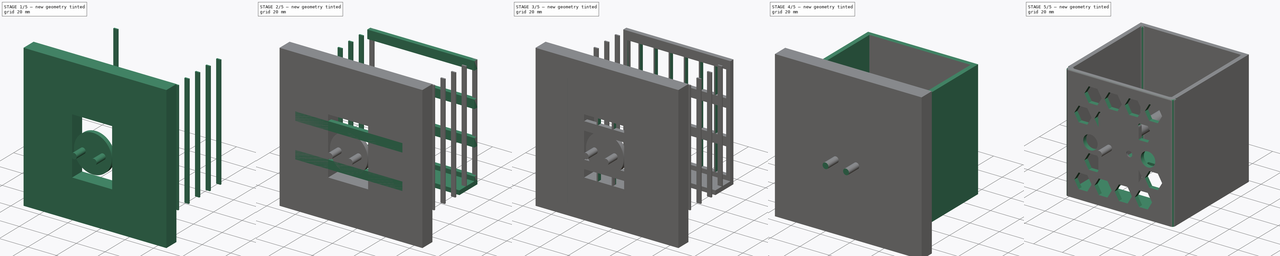
[diagram: build sequence overview — one tinted view per stage of 5, left to right]
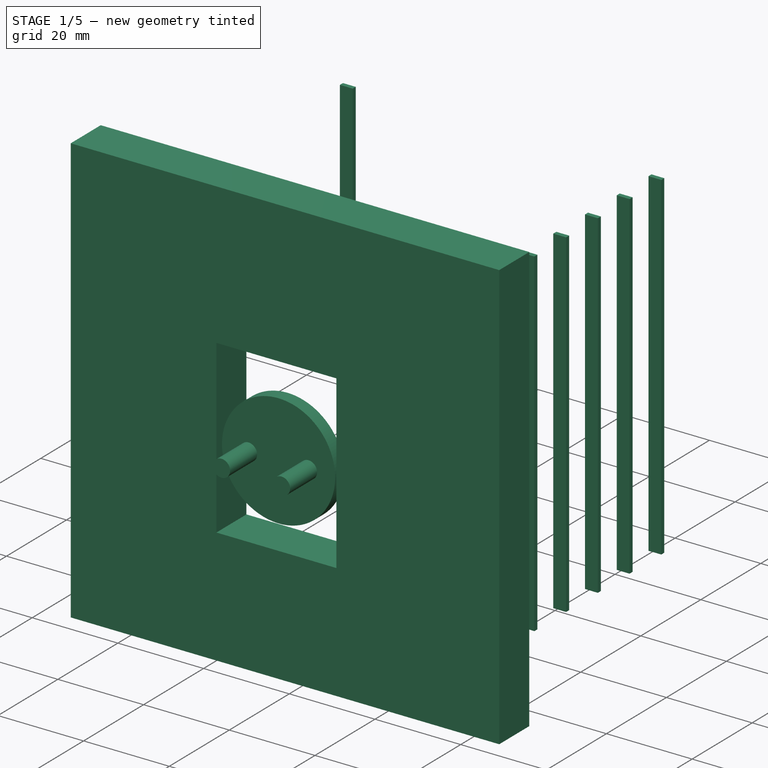
[diagram: stage 1 of 5 — iso view after this stage's code; geometry added in this stage tinted green]
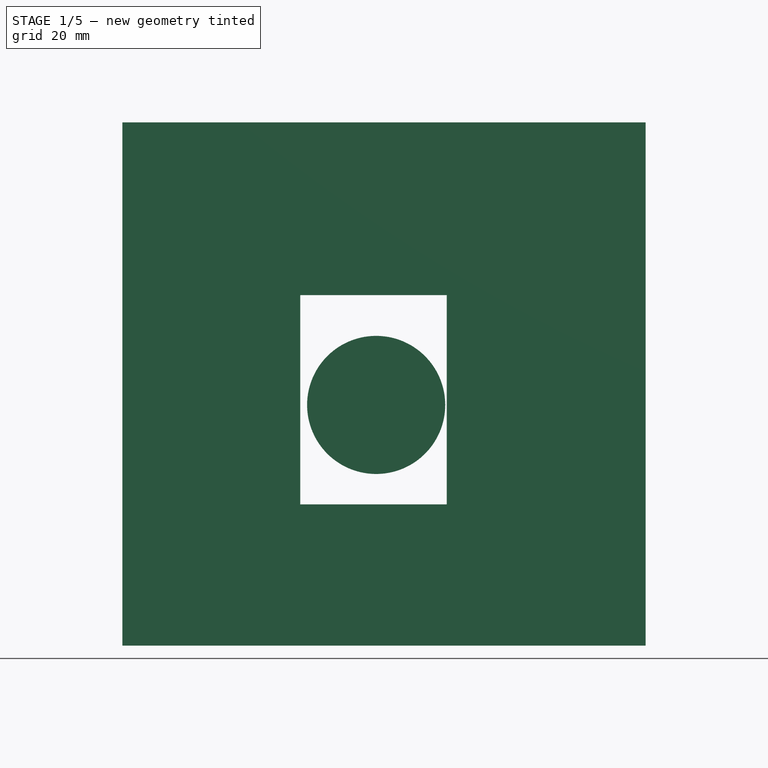
[diagram: stage 1 of 5 — front view after this stage's code; geometry added in this stage tinted green]
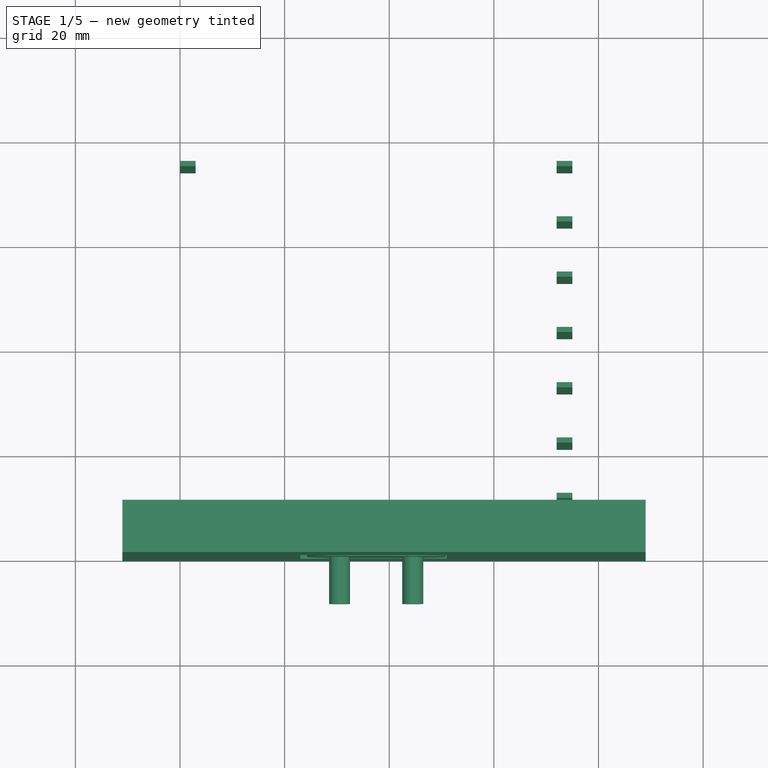
[diagram: stage 1 of 5 — top view after this stage's code; geometry added in this stage tinted green]
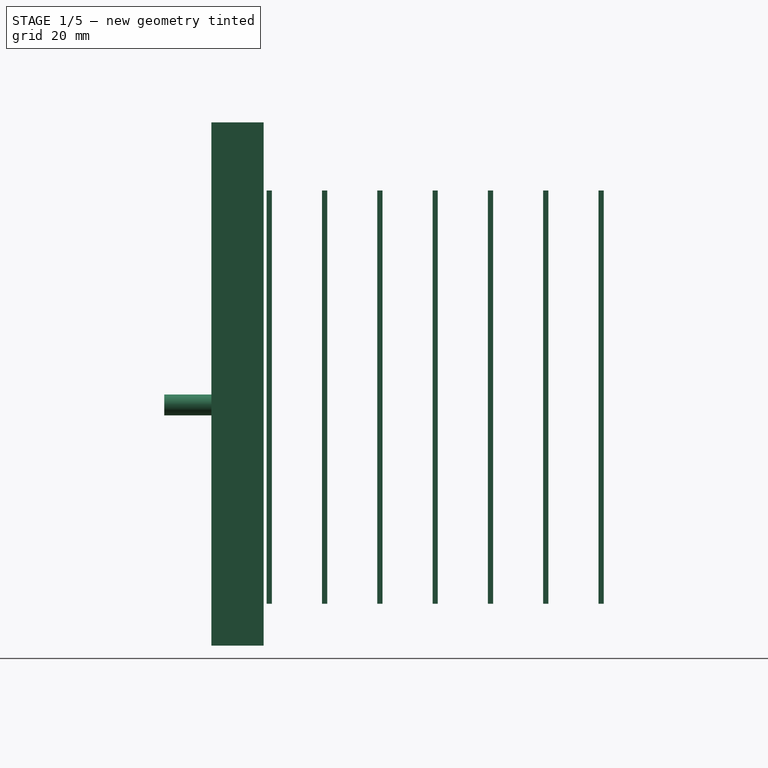
[diagram: stage 1 of 5 — right view after this stage's code; geometry added in this stage tinted green]
FCSTD DOCUMENT  (FreeCAD 0.19R)
Label: bycicle_bottle_holder
License: All rights reserved
LicenseURL: http://en.wikipedia.org/wiki/All_rights_reserved
objects: Part::Box×54, Part::MultiFuse×14, Part::FeaturePython×11, Part::Fuse×5, Part::Cut×5, Sketcher::SketchObject×5, PartDesign::Pad×5, Part::Cylinder×4, PartDesign::ShapeBinder×4, PartDesign::Body×3, Part::Cone×2, Part::Fillet×2, Part::Feature×2, Part::Refine×1, Part::RegularPolygon×1, Part::Extrusion×1, PartDesign::AdditiveLoft×1, Part::Plane×1, App::DocumentObjectGroup×1
note: 119 computed .brp shape members not serialized (recipe doc carries the construction recipe); baked Part::Feature solids carry a one-line shape summary decoded from their .brp

FEATURE [Part::Box] cube043
  AttacherType = Attacher::AttachEngine3D
  Height = 79
  Length = 3
  Placement = pos=(0,74,0) rot=(0,0,1;0rad)
  Width = 1
FEATURE [Part::Box] cube044
  AttacherType = Attacher::AttachEngine3D
  Height = 79
  Length = 3
  Placement = pos=(72,0,0) rot=(0,0,1;0rad)
  Width = 1
FEATURE [Part::Box] cube045
  AttacherType = Attacher::AttachEngine3D
  Height = 79
  Length = 3
  Placement = pos=(72,10.5714,0) rot=(0,0,1;0rad)
  Width = 1
FEATURE [Part::Box] cube046
  AttacherType = Attacher::AttachEngine3D
  Height = 79
  Length = 3
  Placement = pos=(72,21.1429,0) rot=(0,0,1;0rad)
  Width = 1
FEATURE [Part::Box] cube047
  AttacherType = Attacher::AttachEngine3D
  Height = 79
  Length = 3
  Placement = pos=(72,31.7143,0) rot=(0,0,1;0rad)
  Width = 1
FEATURE [Part::Box] cube048
  AttacherType = Attacher::AttachEngine3D
  Height = 79
  Length = 3
  Placement = pos=(72,42.2857,0) rot=(0,0,1;0rad)
  Width = 1
FEATURE [Part::Box] cube049
  AttacherType = Attacher::AttachEngine3D
  Height = 79
  Length = 3
  Placement = pos=(72,52.8571,0) rot=(0,0,1;0rad)
  Width = 1
FEATURE [Part::Box] cube050
  AttacherType = Attacher::AttachEngine3D
  Height = 79
  Length = 3
  Placement = pos=(72,63.4286,0) rot=(0,0,1;0rad)
  Width = 1
FEATURE [Part::Box] cube051
  AttacherType = Attacher::AttachEngine3D
  Height = 79
  Length = 3
  Placement = pos=(72,74,0) rot=(0,0,1;0rad)
  Width = 1
FEATURE [Part::MultiFuse] Group010
  Shapes = -> [cube044,cube045,cube046,cube047,cube048,cube049,cube050,cube051]
FEATURE [Part::Cylinder] cylinder
  Angle = 360
  AttacherType = Attacher::AttachEngine3D
  Height = 3
  Placement = pos=(37.5,3,38) rot=(1,0,0;1.5708rad)
  Radius = 13.2
FEATURE [Part::Cone] cylinder001
  Angle = 360
  AttacherType = Attacher::AttachEngine3D
  Height = 2.2
  Radius1 = 3.7
  Radius2 = 2
FEATURE [Part::Cylinder] cylinder002
  Angle = 360
  AttacherType = Attacher::AttachEngine3D
  Height = 12
  Radius = 2
FEATURE [Part::Fuse] Matrix_Union
  Base = -> cylinder001
  Placement = pos=(-7,0,0) rot=(1,0,0;1.5708rad)
  Tool = -> cylinder002
FEATURE [Part::Cone] cylinder003
  Angle = 360
  AttacherType = Attacher::AttachEngine3D
  Height = 2.2
  Radius1 = 3.7
  Radius2 = 2
FEATURE [Part::Cylinder] cylinder004
  Angle = 360
  AttacherType = Attacher::AttachEngine3D
  Height = 12
  Radius = 2
FEATURE [Part::Fuse] Matrix_Union001
  Base = -> cylinder003
  Placement = pos=(7,0,0) rot=(1,0,0;1.5708rad)
  Tool = -> cylinder004
FEATURE [Part::Fuse] Group012
  Base = -> Matrix_Union
  Placement = pos=(37.5,3,38) rot=(0,0,1;0rad)
  Tool = -> Matrix_Union001
FEATURE [Part::Box] Box  label="Cube"
  AttacherType = Attacher::AttachEngine3D
  Height = 40
  Length = 28
  Placement = pos=(23,0,19) rot=(0,0,1;0rad)
  Width = 10
FEATURE [Part::Box] Box001  label="Cube001"
  AttacherType = Attacher::AttachEngine3D
  Height = 100
  Length = 100
  Placement = pos=(-11,0,-8) rot=(0,0,1;0rad)
  Width = 10
FEATURE [Part::Cut] Cut001002
  Base = -> Box001
  Tool = -> Box
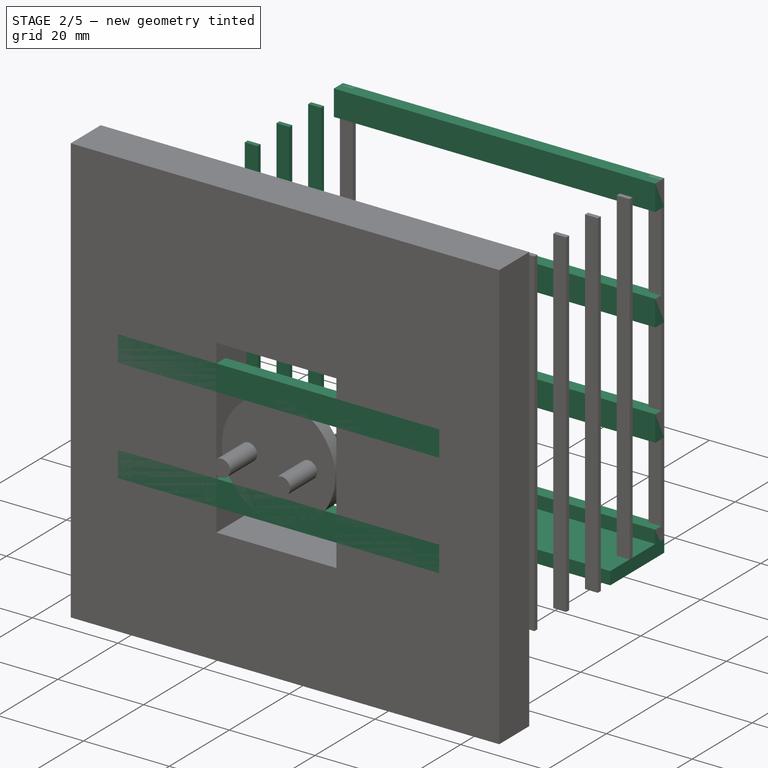
[diagram: stage 2 of 5 — iso view after this stage's code; geometry added in this stage tinted green]
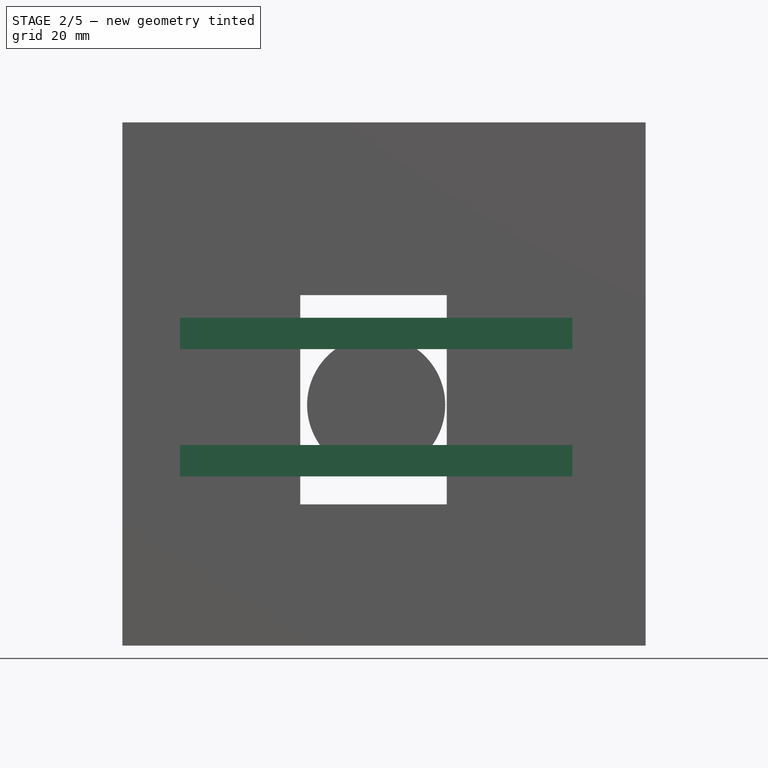
[diagram: stage 2 of 5 — front view after this stage's code; geometry added in this stage tinted green]
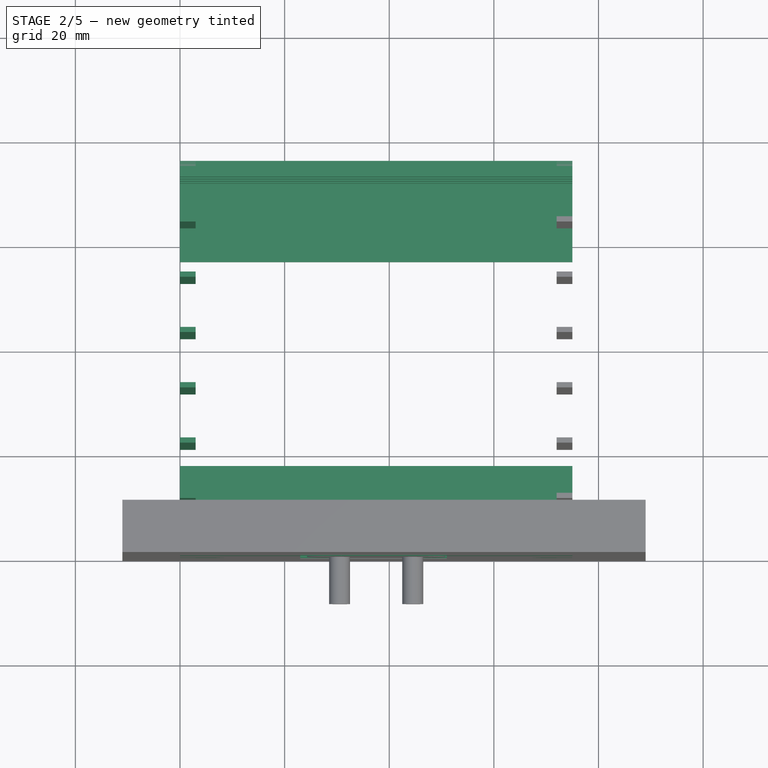
[diagram: stage 2 of 5 — top view after this stage's code; geometry added in this stage tinted green]
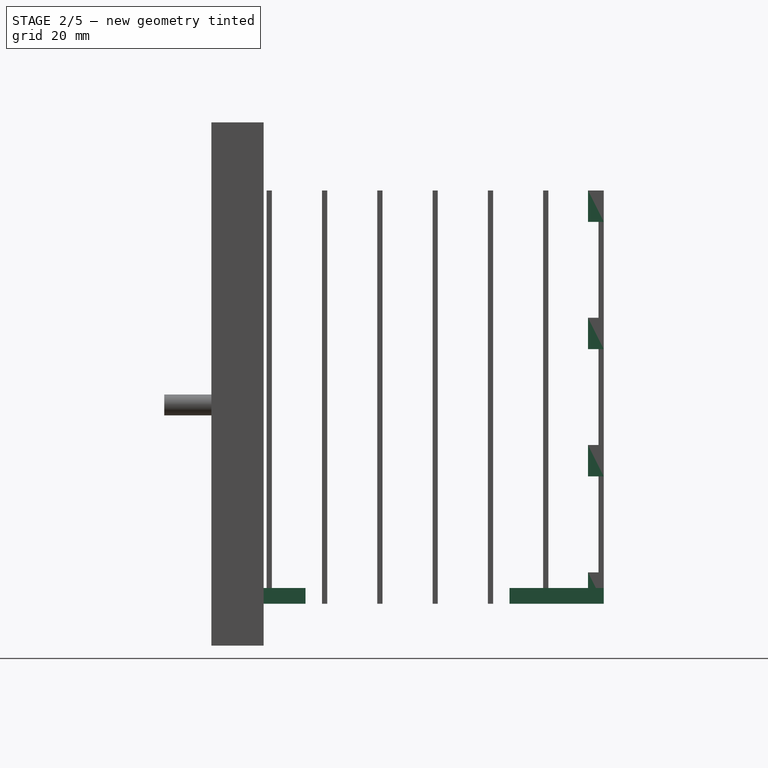
[diagram: stage 2 of 5 — right view after this stage's code; geometry added in this stage tinted green]
FEATURE [Part::Box] cube026
  AttacherType = Attacher::AttachEngine3D
  Height = 3
  Length = 75
  Width = 18
FEATURE [Part::Box] cube027
  AttacherType = Attacher::AttachEngine3D
  Height = 6
  Length = 75
  Width = 3
FEATURE [Part::Box] cube028
  AttacherType = Attacher::AttachEngine3D
  Height = 6
  Length = 75
  Placement = pos=(0,0,24.3333) rot=(0,0,1;0rad)
  Width = 3
FEATURE [Part::Box] cube029
  AttacherType = Attacher::AttachEngine3D
  Height = 6
  Length = 75
  Placement = pos=(0,0,48.6667) rot=(0,0,1;0rad)
  Width = 3
FEATURE [Part::Box] cube030
  AttacherType = Attacher::AttachEngine3D
  Height = 6
  Length = 75
  Placement = pos=(0,0,73) rot=(0,0,1;0rad)
  Width = 3
FEATURE [Part::MultiFuse] Group006
  Shapes = -> [cube027,cube028,cube029,cube030]
FEATURE [Part::Box] cube031
  AttacherType = Attacher::AttachEngine3D
  Height = 3
  Length = 75
  Placement = pos=(0,57,0) rot=(0,0,1;0rad)
  Width = 18
FEATURE [Part::Box] cube032
  AttacherType = Attacher::AttachEngine3D
  Height = 6
  Length = 75
  Placement = pos=(0,72,0) rot=(0,0,1;0rad)
  Width = 3
FEATURE [Part::Box] cube033
  AttacherType = Attacher::AttachEngine3D
  Height = 6
  Length = 75
  Placement = pos=(0,72,24.3333) rot=(0,0,1;0rad)
  Width = 3
FEATURE [Part::Box] cube034
  AttacherType = Attacher::AttachEngine3D
  Height = 6
  Length = 75
  Placement = pos=(0,72,48.6667) rot=(0,0,1;0rad)
  Width = 3
FEATURE [Part::Box] cube035
  AttacherType = Attacher::AttachEngine3D
  Height = 6
  Length = 75
  Placement = pos=(0,72,73) rot=(0,0,1;0rad)
  Width = 3
FEATURE [Part::MultiFuse] Group007
  Shapes = -> [cube032,cube033,cube034,cube035]
FEATURE [Part::Box] cube036
  AttacherType = Attacher::AttachEngine3D
  Height = 79
  Length = 3
  Width = 1
FEATURE [Part::Box] cube037
  AttacherType = Attacher::AttachEngine3D
  Height = 79
  Length = 3
  Placement = pos=(0,10.5714,0) rot=(0,0,1;0rad)
  Width = 1
FEATURE [Part::Box] cube038
  AttacherType = Attacher::AttachEngine3D
  Height = 79
  Length = 3
  Placement = pos=(0,21.1429,0) rot=(0,0,1;0rad)
  Width = 1
FEATURE [Part::Box] cube039
  AttacherType = Attacher::AttachEngine3D
  Height = 79
  Length = 3
  Placement = pos=(0,31.7143,0) rot=(0,0,1;0rad)
  Width = 1
FEATURE [Part::Box] cube040
  AttacherType = Attacher::AttachEngine3D
  Height = 79
  Length = 3
  Placement = pos=(0,42.2857,0) rot=(0,0,1;0rad)
  Width = 1
FEATURE [Part::Box] cube041
  AttacherType = Attacher::AttachEngine3D
  Height = 79
  Length = 3
  Placement = pos=(0,52.8571,0) rot=(0,0,1;0rad)
  Width = 1
FEATURE [Part::Box] cube042
  AttacherType = Attacher::AttachEngine3D
  Height = 79
  Length = 3
  Placement = pos=(0,63.4286,0) rot=(0,0,1;0rad)
  Width = 1
FEATURE [Part::MultiFuse] Group009
  Shapes = -> [cube036,cube037,cube038,cube039,cube040,cube041,cube042,cube043]
FEATURE [Part::Fuse] Group011
  Base = -> Group009
  Tool = -> Group010
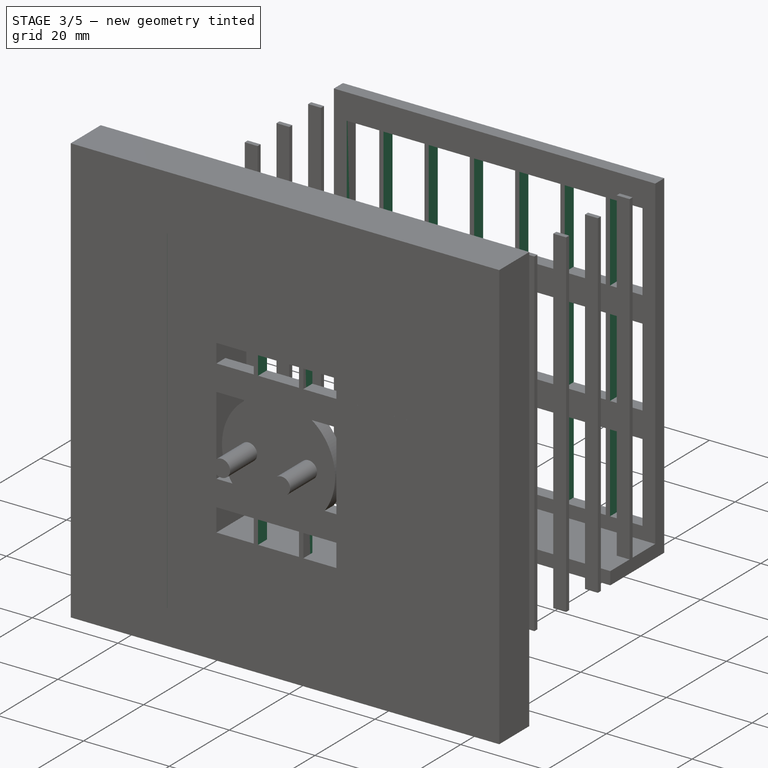
[diagram: stage 3 of 5 — iso view after this stage's code; geometry added in this stage tinted green]
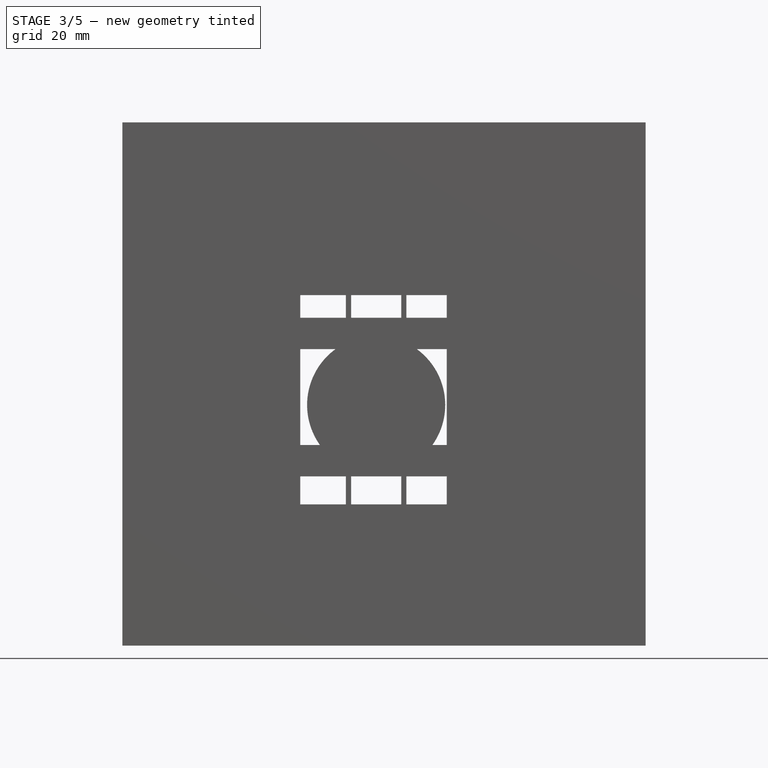
[diagram: stage 3 of 5 — front view after this stage's code; geometry added in this stage tinted green]
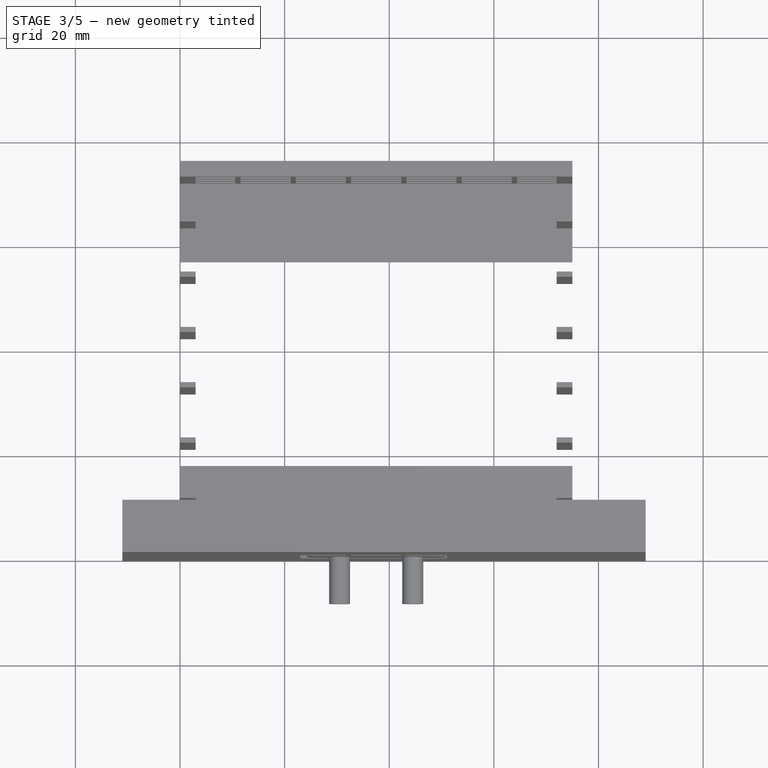
[diagram: stage 3 of 5 — top view after this stage's code; geometry added in this stage tinted green]
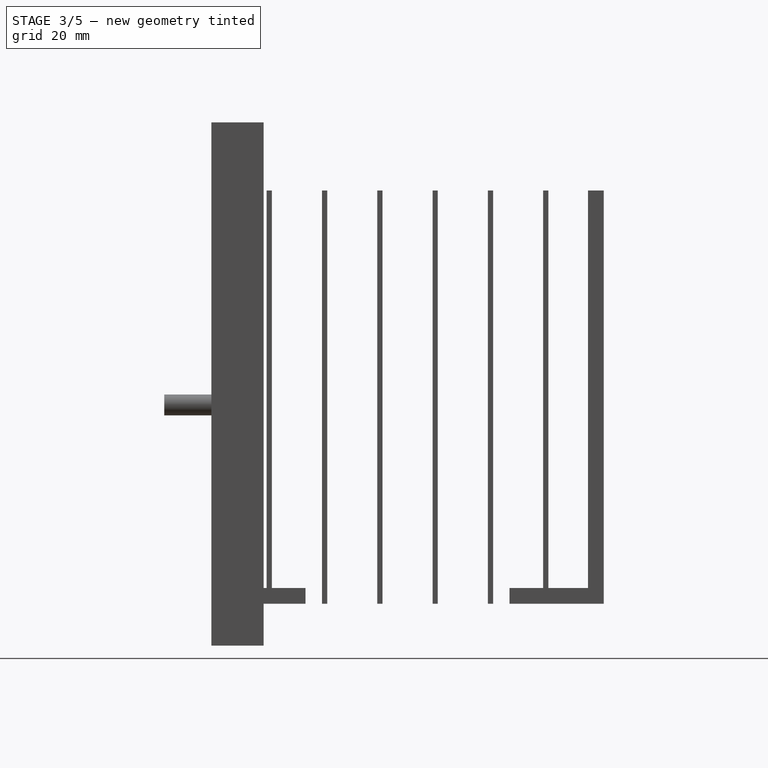
[diagram: stage 3 of 5 — right view after this stage's code; geometry added in this stage tinted green]
FEATURE [Part::Box] cube010
  AttacherType = Attacher::AttachEngine3D
  Height = 79
  Length = 3
  Width = 3
FEATURE [Part::Box] cube011
  AttacherType = Attacher::AttachEngine3D
  Height = 79
  Length = 1
  Placement = pos=(10.5714,0,0) rot=(0,0,1;0rad)
  Width = 3
FEATURE [Part::Box] cube012
  AttacherType = Attacher::AttachEngine3D
  Height = 79
  Length = 1
  Placement = pos=(21.1429,0,0) rot=(0,0,1;0rad)
  Width = 3
FEATURE [Part::Box] cube013
  AttacherType = Attacher::AttachEngine3D
  Height = 79
  Length = 1
  Placement = pos=(31.7143,0,0) rot=(0,0,1;0rad)
  Width = 3
FEATURE [Part::Box] cube014
  AttacherType = Attacher::AttachEngine3D
  Height = 79
  Length = 1
  Placement = pos=(42.2857,0,0) rot=(0,0,1;0rad)
  Width = 3
FEATURE [Part::Box] cube015
  AttacherType = Attacher::AttachEngine3D
  Height = 79
  Length = 1
  Placement = pos=(52.8571,0,0) rot=(0,0,1;0rad)
  Width = 3
FEATURE [Part::Box] cube016
  AttacherType = Attacher::AttachEngine3D
  Height = 79
  Length = 1
  Placement = pos=(63.4286,0,0) rot=(0,0,1;0rad)
  Width = 3
FEATURE [Part::Box] cube017
  AttacherType = Attacher::AttachEngine3D
  Height = 79
  Length = 3
  Placement = pos=(72,0,0) rot=(0,0,1;0rad)
  Width = 3
FEATURE [Part::MultiFuse] Group003
  Shapes = -> [cube010,cube011,cube012,cube013,cube014,cube015,cube016,cube017]
FEATURE [Part::Box] cube018
  AttacherType = Attacher::AttachEngine3D
  Height = 79
  Length = 3
  Placement = pos=(0,72,0) rot=(0,0,1;0rad)
  Width = 3
FEATURE [Part::Box] cube019
  AttacherType = Attacher::AttachEngine3D
  Height = 79
  Length = 1
  Placement = pos=(10.5714,72,0) rot=(0,0,1;0rad)
  Width = 3
FEATURE [Part::Box] cube020
  AttacherType = Attacher::AttachEngine3D
  Height = 79
  Length = 1
  Placement = pos=(21.1429,72,0) rot=(0,0,1;0rad)
  Width = 3
FEATURE [Part::Box] cube021
  AttacherType = Attacher::AttachEngine3D
  Height = 79
  Length = 1
  Placement = pos=(31.7143,72,0) rot=(0,0,1;0rad)
  Width = 3
FEATURE [Part::Box] cube022
  AttacherType = Attacher::AttachEngine3D
  Height = 79
  Length = 1
  Placement = pos=(42.2857,72,0) rot=(0,0,1;0rad)
  Width = 3
FEATURE [Part::Box] cube023
  AttacherType = Attacher::AttachEngine3D
  Height = 79
  Length = 1
  Placement = pos=(52.8571,72,0) rot=(0,0,1;0rad)
  Width = 3
FEATURE [Part::Box] cube024
  AttacherType = Attacher::AttachEngine3D
  Height = 79
  Length = 1
  Placement = pos=(63.4286,72,0) rot=(0,0,1;0rad)
  Width = 3
FEATURE [Part::Box] cube025
  AttacherType = Attacher::AttachEngine3D
  Height = 79
  Length = 3
  Placement = pos=(72,72,0) rot=(0,0,1;0rad)
  Width = 3
FEATURE [Part::MultiFuse] Group004
  Shapes = -> [cube018,cube019,cube020,cube021,cube022,cube023,cube024,cube025]
FEATURE [Part::Fuse] Group005
  Base = -> Group003
  Tool = -> Group004
FEATURE [Part::MultiFuse] Group008
  Shapes = -> [cube026,Group006,cube031,Group007]
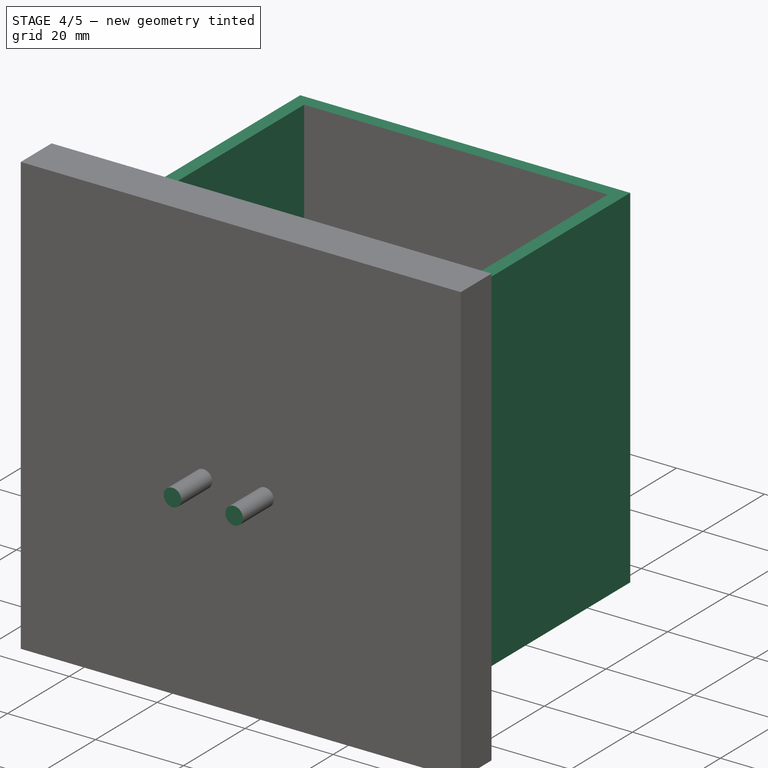
[diagram: stage 4 of 5 — iso view after this stage's code; geometry added in this stage tinted green]
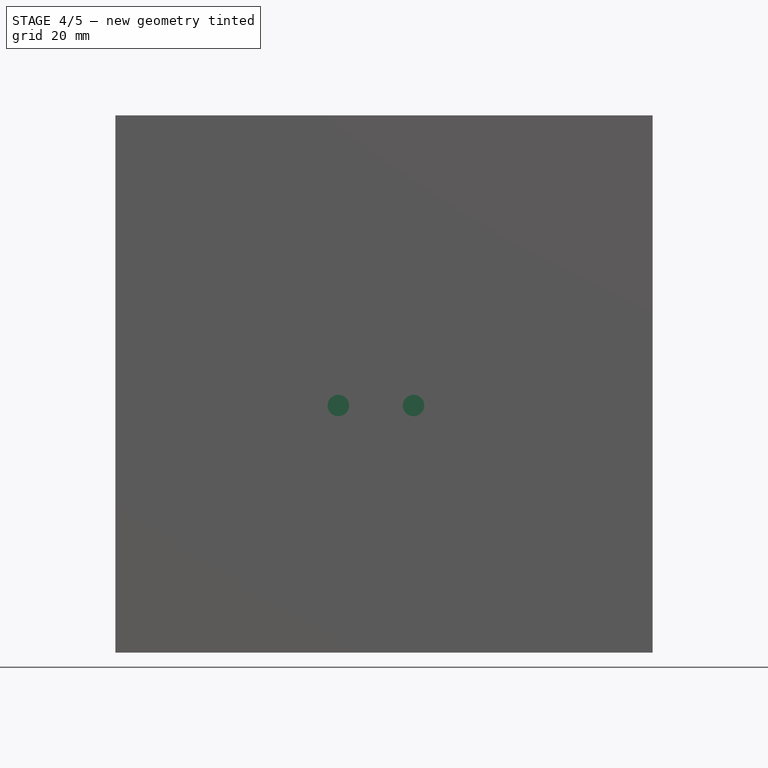
[diagram: stage 4 of 5 — front view after this stage's code; geometry added in this stage tinted green]
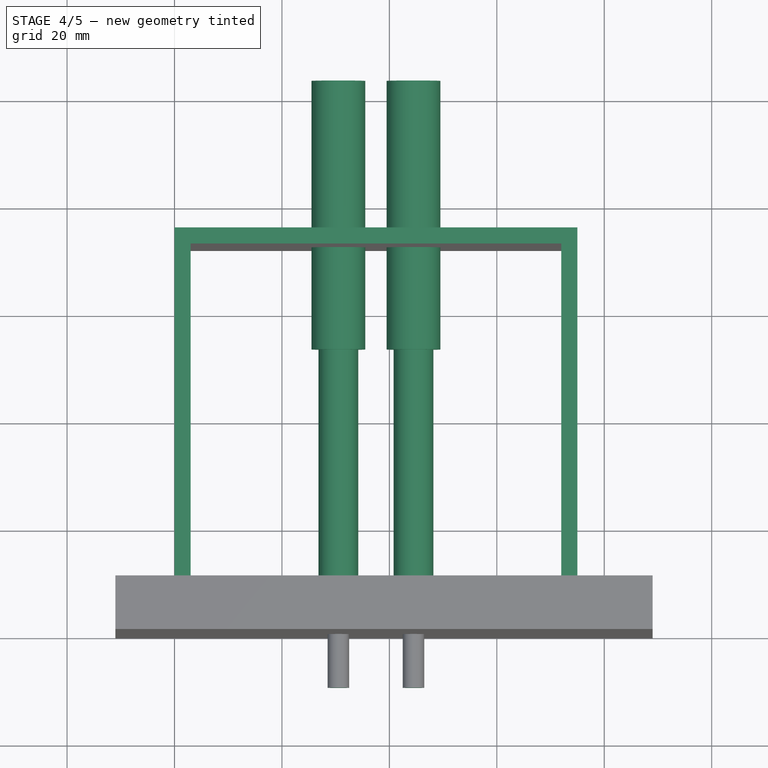
[diagram: stage 4 of 5 — top view after this stage's code; geometry added in this stage tinted green]
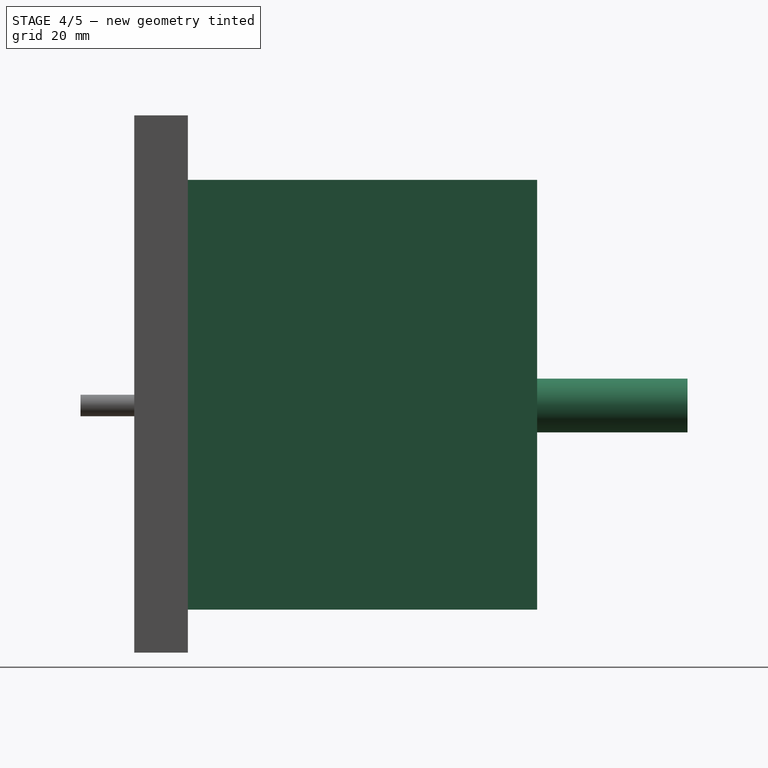
[diagram: stage 4 of 5 — right view after this stage's code; geometry added in this stage tinted green]
FEATURE [Part::Box] cube
  AttacherType = Attacher::AttachEngine3D
  Height = 3
  Length = 18
  Width = 75
FEATURE [Part::Box] cube001
  AttacherType = Attacher::AttachEngine3D
  Height = 6
  Length = 3
  Width = 75
FEATURE [Part::Box] cube002
  AttacherType = Attacher::AttachEngine3D
  Height = 6
  Length = 3
  Placement = pos=(0,0,24.3333) rot=(0,0,1;0rad)
  Width = 75
FEATURE [Part::Box] cube003
  AttacherType = Attacher::AttachEngine3D
  Height = 6
  Length = 3
  Placement = pos=(0,0,48.6667) rot=(0,0,1;0rad)
  Width = 75
FEATURE [Part::Box] cube004
  AttacherType = Attacher::AttachEngine3D
  Height = 6
  Length = 3
  Placement = pos=(0,0,73) rot=(0,0,1;0rad)
  Width = 75
FEATURE [Part::MultiFuse] Group
  Shapes = -> [cube001,cube002,cube003,cube004]
FEATURE [Part::Box] cube005
  AttacherType = Attacher::AttachEngine3D
  Height = 3
  Length = 18
  Placement = pos=(57,0,0) rot=(0,0,1;0rad)
  Width = 75
FEATURE [Part::Box] cube006
  AttacherType = Attacher::AttachEngine3D
  Height = 6
  Length = 3
  Placement = pos=(72,0,0) rot=(0,0,1;0rad)
  Width = 75
FEATURE [Part::Box] cube007
  AttacherType = Attacher::AttachEngine3D
  Height = 6
  Length = 3
  Placement = pos=(72,0,24.3333) rot=(0,0,1;0rad)
  Width = 75
FEATURE [Part::Box] cube008
  AttacherType = Attacher::AttachEngine3D
  Height = 6
  Length = 3
  Placement = pos=(72,0,48.6667) rot=(0,0,1;0rad)
  Width = 75
FEATURE [Part::Box] cube009
  AttacherType = Attacher::AttachEngine3D
  Height = 6
  Length = 3
  Placement = pos=(72,0,73) rot=(0,0,1;0rad)
  Width = 75
FEATURE [Part::MultiFuse] Group001
  Shapes = -> [cube006,cube007,cube008,cube009]
FEATURE [Part::MultiFuse] Group002
  Shapes = -> [cube,Group,cube005,Group001]
FEATURE [Part::MultiFuse] union
  Shapes = -> [Group002,Group005,Group008,Group011,cylinder]
FEATURE [Part::Cut] difference
  Base = -> union
  Tool = -> Group012
FEATURE [PartDesign::Body] Body  label="bottom body"
  Group = -> [Sketch,ShapeBinder,Pad]
  Origin = -> Origin
  Tip = -> Pad
FEATURE [PartDesign::ShapeBinder] ShapeBinder001
  Support = -> [difference001]
  TraceSupport = false
FEATURE [Sketcher::SketchObject] Sketch001
  ExternalGeometry = -> [ShapeBinder001]
  FullyConstrained = true
  MapMode = 5
  Support = -> [XY_Plane001]
  sketch-geometry (8):
    g0: LineSegment StartX=0 StartY=0 StartZ=0 EndX=75 EndY=0 EndZ=0
    g1: LineSegment StartX=75 StartY=0 StartZ=0 EndX=75 EndY=75 EndZ=0
    g2: LineSegment StartX=75 StartY=75 StartZ=0 EndX=0 EndY=75 EndZ=0
    g3: LineSegment StartX=0 StartY=75 StartZ=0 EndX=0 EndY=0 EndZ=0
    g4: LineSegment StartX=3 StartY=3 StartZ=0 EndX=72 EndY=3 EndZ=0
    g5: LineSegment StartX=72 StartY=3 StartZ=0 EndX=72 EndY=72 EndZ=0
    g6: LineSegment StartX=72 StartY=72 StartZ=0 EndX=3 EndY=72 EndZ=0
    g7: LineSegment StartX=3 StartY=72 StartZ=0 EndX=3 EndY=3 EndZ=0
  constraints (20):
    c: Coincident(g0,g1)
    c: Coincident(g1,g2)
    c: Coincident(g2,g3)
    c: Coincident(g3,g0)
    c: Horizontal(g0)
    c: Horizontal(g2)
    c: Vertical(g1)
    c: Vertical(g3)
    c: Coincident(g0,g-1)
    c: Coincident(g1,g-3)
    c: Coincident(g4,g5)
    c: Coincident(g5,g6)
    c: Coincident(g6,g7)
    c: Coincident(g7,g4)
    c: Horizontal(g4)
    c: Horizontal(g6)
    c: Vertical(g5)
    c: Vertical(g7)
    c: Coincident(g4,g-5)
    c: Coincident(g5,g-6)
FEATURE [PartDesign::Pad] Pad001
  Direction = (1,1,1)
  Length = 80
  Length2 = 100
  Profile = -> Sketch001
  Type = 0
FEATURE [PartDesign::ShapeBinder] ShapeBinder002
  Support = -> [difference001]
  TraceSupport = false
FEATURE [PartDesign::ShapeBinder] ShapeBinder003
  Support = -> [difference001]
  TraceSupport = false
FEATURE [Sketcher::SketchObject] Sketch002
  FullyConstrained = false
  MapMode = 5
  Placement = pos=(0,0,0) rot=(1,0,0;1.5708rad)
  Support = -> [ShapeBinder003]
  sketch-geometry (1):
    g0: Circle CenterX=30.5 CenterY=38 CenterZ=0 NormalX=0 NormalY=0 NormalZ=1 AngleXU=0 Radius=2
FEATURE [Sketcher::SketchObject] Sketch003
  FullyConstrained = false
  MapMode = 5
  Placement = pos=(0,3,0) rot=(0,0.707107,0.707107;3.14159rad)
  Support = -> [ShapeBinder002]
  sketch-geometry (1):
    g0: Circle CenterX=-30.5 CenterY=38 CenterZ=0 NormalX=0 NormalY=0 NormalZ=1 AngleXU=0 Radius=3.7
FEATURE [PartDesign::AdditiveLoft] AdditiveLoft  label="bolt hole cone"
  Closed = true
  Profile = -> Sketch002
  Ruled = false
  Sections = -> [Sketch003]
FEATURE [PartDesign::Pad] Pad002  label="bolt narrow hole001"
  BaseFeature = -> AdditiveLoft
  Direction = (1,1,1)
  Length = 10
  Length2 = 100
  Profile = -> Sketch002
  Type = 0
FEATURE [PartDesign::Pad] Pad003  label="bolt hole"
  BaseFeature = -> Pad002
  Direction = (1,1,1)
  Length = 50
  Length2 = 100
  Profile = -> Sketch003
  Type = 0
FEATURE [Sketcher::SketchObject] Sketch004
  FullyConstrained = false
  MapMode = 5
  Placement = pos=(0,53,-1.48e-14) rot=(0,0.707107,0.707107;3.14159rad)
  Support = -> [Pad003]
  sketch-geometry (1):
    g0: Circle CenterX=-30.5 CenterY=38 CenterZ=0 NormalX=0 NormalY=0 NormalZ=1 AngleXU=0 Radius=5
  constraints (1):
    c: Radius(g0) = 5
FEATURE [PartDesign::Pad] Pad004  label="full bolt hole"
  BaseFeature = -> Pad003
  Direction = (1,1,1)
  Length = 50
  Length2 = 100
  Profile = -> Sketch004
  Type = 0
FEATURE [PartDesign::Body] Body002  label="bolt hole body"
  Group = -> [Sketch002,ShapeBinder002,ShapeBinder003,Sketch003,AdditiveLoft,Pad002,Pad003,Sketch004,Pad004]
  Origin = -> Origin002
  Tip = -> Pad004
FEATURE [Part::FeaturePython] Array  label="bolt hole array"  # Draft array (typed FeaturePython)
  Angle = 360
  ArrayType = 0
  Axis = (0,0,1)
  Base = -> Pad004
  Center = (0,0,0)
  Count = 2
  ExpandArray = false
  Fuse = false
  IntervalAxis = (0,0,0)
  IntervalX = (14,0,0)
  IntervalY = (0,100,0)
  IntervalZ = (0,0,100)
  NumberCircles = 3
  NumberPolar = 5
  NumberX = 2
  NumberY = 1
  NumberZ = 1
  PlacementList = 2 placements: [(0,0,0),(14,0,0)]
  RadialDistance = 50
  ScaleList = (2) [(1,1,1),(1,1,1)]
  Symmetry = 1
  TangentialDistance = 25
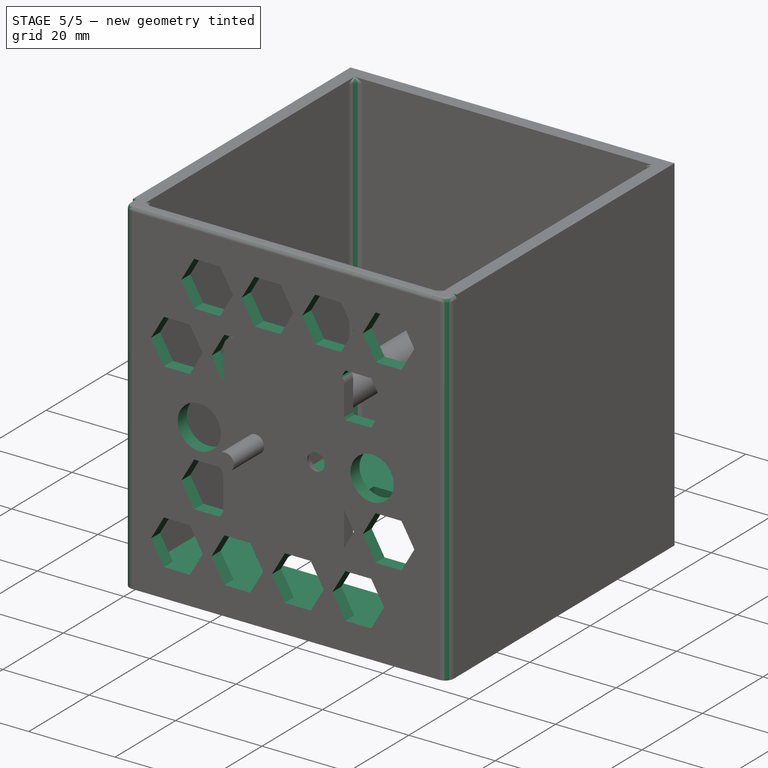
[diagram: stage 5 of 5 — iso view after this stage's code; geometry added in this stage tinted green]
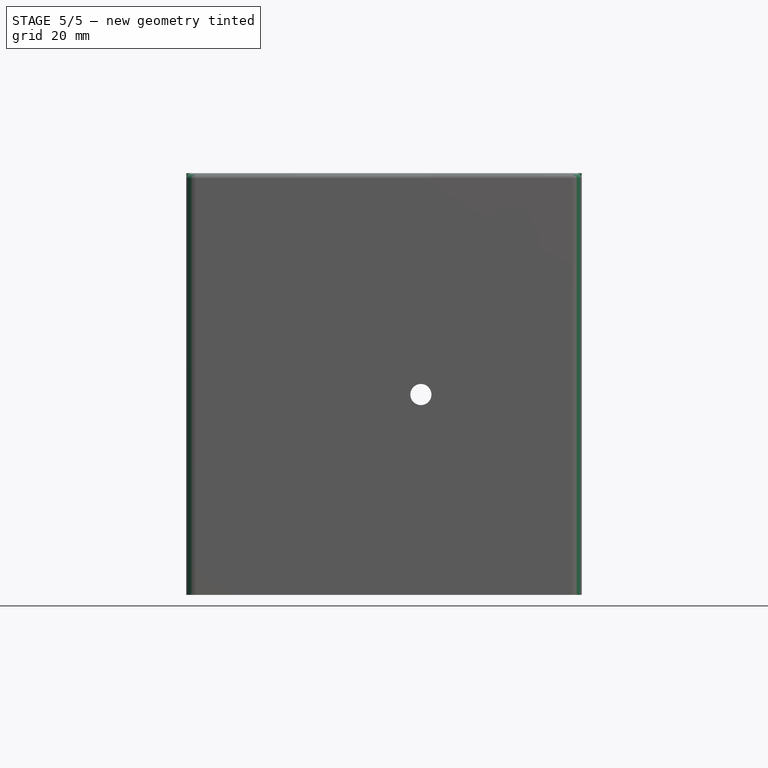
[diagram: stage 5 of 5 — front view after this stage's code; geometry added in this stage tinted green]
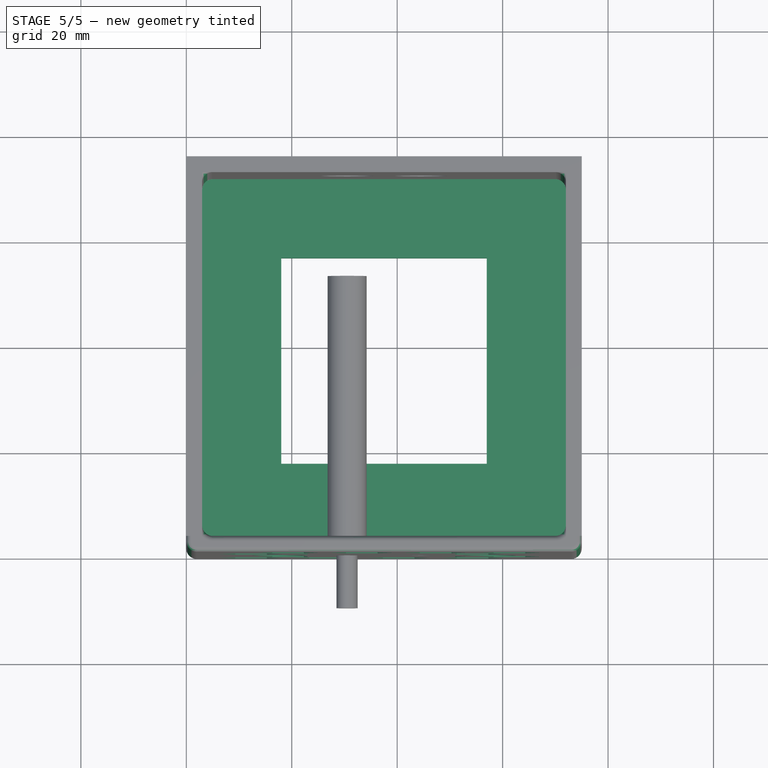
[diagram: stage 5 of 5 — top view after this stage's code; geometry added in this stage tinted green]
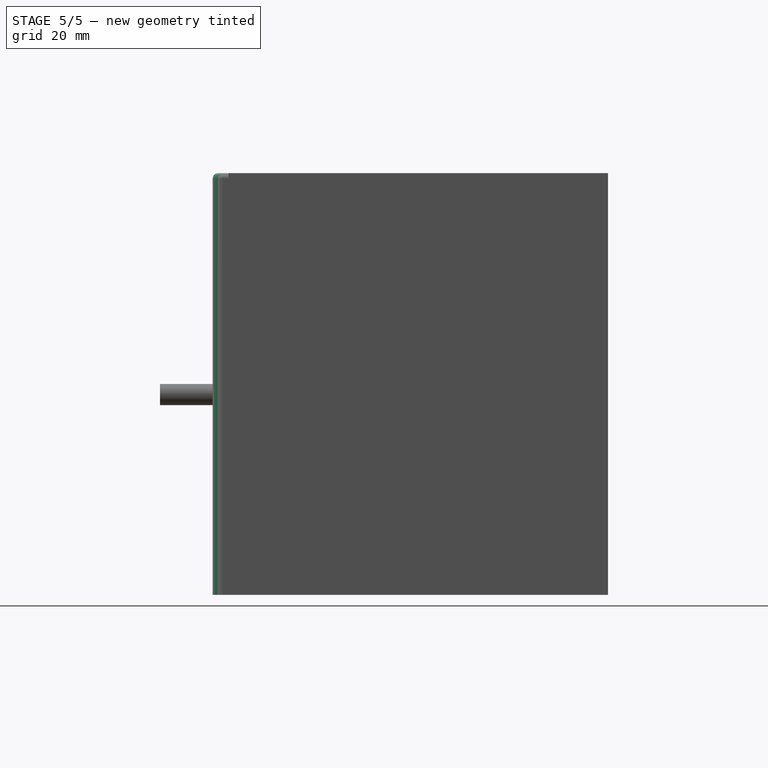
[diagram: stage 5 of 5 — right view after this stage's code; geometry added in this stage tinted green]
FEATURE [Part::Refine] difference001
  Source = -> difference
FEATURE [PartDesign::ShapeBinder] ShapeBinder
  Support = -> [difference001]
  TraceSupport = false
FEATURE [Sketcher::SketchObject] Sketch
  ExternalGeometry = -> [ShapeBinder]
  FullyConstrained = true
  MapMode = 5
  Support = -> [XY_Plane]
  sketch-geometry (8):
    g0: LineSegment StartX=0 StartY=0 StartZ=0 EndX=75 EndY=0 EndZ=0
    g1: LineSegment StartX=75 StartY=0 StartZ=0 EndX=75 EndY=75 EndZ=0
    g2: LineSegment StartX=75 StartY=75 StartZ=0 EndX=0 EndY=75 EndZ=0
    g3: LineSegment StartX=0 StartY=75 StartZ=0 EndX=0 EndY=0 EndZ=0
    g4: LineSegment StartX=18 StartY=18 StartZ=0 EndX=57 EndY=18 EndZ=0
    g5: LineSegment StartX=57 StartY=18 StartZ=0 EndX=57 EndY=57 EndZ=0
    g6: LineSegment StartX=57 StartY=57 StartZ=0 EndX=18 EndY=57 EndZ=0
    g7: LineSegment StartX=18 StartY=57 StartZ=0 EndX=18 EndY=18 EndZ=0
  constraints (20):
    c: Coincident(g0,g1)
    c: Coincident(g1,g2)
    c: Coincident(g2,g3)
    c: Coincident(g3,g0)
    c: Horizontal(g0)
    c: Horizontal(g2)
    c: Vertical(g1)
    c: Vertical(g3)
    c: Coincident(g0,g-1)
    c: Coincident(g1,g-3)
    c: Coincident(g4,g5)
    c: Coincident(g5,g6)
    c: Coincident(g6,g7)
    c: Coincident(g7,g4)
    c: Horizontal(g4)
    c: Horizontal(g6)
    c: Vertical(g5)
    c: Vertical(g7)
    c: Coincident(g4,g-6)
    c: Coincident(g5,g-4)
FEATURE [PartDesign::Pad] Pad
  Direction = (1,1,1)
  Length = 4
  Length2 = 100
  Profile = -> Sketch
  Type = 0
FEATURE [PartDesign::Body] Body001  label="top body"
  Group = -> [Sketch001,ShapeBinder001,Pad001]
  Origin = -> Origin001
  Tip = -> Pad001
FEATURE [Part::RegularPolygon] RegularPolygon  label="Regular polygon"
  AttacherType = Attacher::AttachEngine3D
  Circumradius = 6
  Polygon = 6
FEATURE [Part::Extrusion] Extrude
  Base = -> RegularPolygon
  Dir = (0,0,1)
  DirMode = 2
  FaceMakerClass = Part::FaceMakerBullseye
  LengthFwd = 80
  LengthRev = 100
  Placement = pos=(37.2929,38.7071,53.7401) rot=(0,1,0;1.5708rad)
  Solid = true
  Symmetric = false
FEATURE [Part::MultiFuse] Fusion  label="bolt hole fusion"
  Shapes = -> [AdditiveLoft,Pad002,Pad003]
FEATURE [Part::Cut] Cut  label="top body cut"
  Base = -> Body001
  Tool = -> Array
FEATURE [Part::MultiFuse] Fusion001  label="full body fusion"
  Shapes = -> [Body,Cut]
FEATURE [Part::Fillet] Fillet  label="full body fillet"
  Base = -> Fusion001
  Edges = 20 edges: [Edge1 r=2,Edge2 r=2,Edge5 r=2,Edge8 r=2,Edge16 r=2,Edge17 r=1,Edge18 r=2,Edge24 r=1,Edge25 r=2,Edge26 r=2,Edge27 r=1,Edge32 r=1,Edge33 r=1,Edge34 r=1,Edge35 r=1,Edge36 r=1,Edge56 r=2,Edge57 r=2,Edge59 r=2,Edge63 r=2]
FEATURE [Part::FeaturePython] Array001  label="extrude array"  # Draft array (typed FeaturePython)
  Angle = 360
  ArrayType = 0
  Axis = (0,0,1)
  Base = -> Extrude
  Center = (0,0,0)
  Count = 4
  ExpandArray = false
  Fuse = false
  IntervalAxis = (0,0,0)
  IntervalX = (100,0,0)
  IntervalY = (0,100,0)
  IntervalZ = (0,0,16)
  NumberCircles = 3
  NumberPolar = 5
  NumberX = 1
  NumberY = 1
  NumberZ = 4
  Placement = pos=(0,0,-38) rot=(0,0,1;0rad)
  PlacementList = 4 placements: arithmetic series from (37.2929,38.7071,53.7401) step (0,0,16) to (37.2929,38.7071,101.74)
  RadialDistance = 50
  ScaleList = (4) [(1,1,1),(1,1,1),(1,1,1),(1,1,1)]
  Symmetry = 1
  TangentialDistance = 25
FEATURE [Part::FeaturePython] Array002  # Draft array (typed FeaturePython)
  Angle = 360
  ArrayType = 0
  Axis = (0,0,1)
  Base = -> Array001
  Center = (0,0,0)
  Count = 2
  ExpandArray = false
  Fuse = false
  IntervalAxis = (0,0,0)
  IntervalX = (100,0,0)
  IntervalY = (0,14,7)
  IntervalZ = (0,0,100)
  NumberCircles = 3
  NumberPolar = 5
  NumberX = 1
  NumberY = 2
  NumberZ = 1
  PlacementList = 2 placements: [(0,0,-38),(0,14,-31)]
  RadialDistance = 50
  ScaleList = (2) [(1,1,1),(1,1,1)]
  Symmetry = 1
  TangentialDistance = 25
FEATURE [Part::FeaturePython] Array003  label="extrude array001"  # Draft array (typed FeaturePython)
  Angle = 360
  ArrayType = 0
  Axis = (0,0,1)
  Base = -> Array002
  Center = (0,0,0)
  Count = 2
  ExpandArray = false
  Fuse = false
  IntervalAxis = (0,0,0)
  IntervalX = (100,0,0)
  IntervalY = (0,28,0)
  IntervalZ = (0,0,100)
  NumberCircles = 3
  NumberPolar = 5
  NumberX = 1
  NumberY = 2
  NumberZ = 1
  Placement = pos=(0,-21,0) rot=(0,0,1;0rad)
  PlacementList = 2 placements: [(0,0,0),(0,28,0)]
  RadialDistance = 50
  ScaleList = (2) [(1,1,1),(1,1,1)]
  Symmetry = 1
  TangentialDistance = 25
FEATURE [Part::Feature] Extrude001
  Placement = pos=(37.2929,38.7071,70.7401) rot=(0,0.707107,-0.707107;3.14159rad)
  shape: bbox 12 x 180 x 10.39 mm, 8 faces (baked)
FEATURE [Part::FeaturePython] Array004  # Draft array (typed FeaturePython)
  Angle = 360
  ArrayType = 0
  Axis = (0,0,1)
  Base = -> Extrude001
  Center = (0,0,0)
  Count = 4
  ExpandArray = false
  Fuse = false
  IntervalAxis = (0,0,0)
  IntervalX = (14,0,0)
  IntervalY = (0,100,0)
  IntervalZ = (0,0,100)
  NumberCircles = 3
  NumberPolar = 5
  NumberX = 4
  NumberY = 1
  NumberZ = 1
  Placement = pos=(-17,0,0) rot=(0,0,1;0rad)
  PlacementList = 4 placements: arithmetic series from (37.2929,38.7071,70.7401) step (14,0,0) to (79.2929,38.7071,70.7401)
  RadialDistance = 50
  ScaleList = (4) [(1,1,1),(1,1,1),(1,1,1),(1,1,1)]
  Symmetry = 1
  TangentialDistance = 25
FEATURE [Part::FeaturePython] Array005  # Draft array (typed FeaturePython)
  Angle = 360
  ArrayType = 0
  Axis = (0,0,1)
  Base = -> Array004
  Center = (0,0,0)
  Count = 2
  ExpandArray = false
  Fuse = false
  IntervalAxis = (0,0,0)
  IntervalX = (100,0,0)
  IntervalY = (0,100,0)
  IntervalZ = (7,0,14)
  NumberCircles = 3
  NumberPolar = 5
  NumberX = 1
  NumberY = 1
  NumberZ = 2
  Placement = pos=(-8,0,-14) rot=(0,0,1;0rad)
  PlacementList = 2 placements: [(-17,0,0),(-10,0,14)]
  RadialDistance = 50
  ScaleList = (2) [(1,1,1),(1,1,1)]
  Symmetry = 1
  TangentialDistance = 25
FEATURE [Part::FeaturePython] Array006  label="extrude array002"  # Draft array (typed FeaturePython)
  Angle = 360
  ArrayType = 0
  Axis = (0,0,1)
  Base = -> Array005
  Center = (0,0,0)
  Count = 2
  ExpandArray = false
  Fuse = false
  IntervalAxis = (0,0,0)
  IntervalX = (100,0,0)
  IntervalY = (0,100,0)
  IntervalZ = (0,0,42)
  NumberCircles = 3
  NumberPolar = 5
  NumberX = 1
  NumberY = 1
  NumberZ = 2
  Placement = pos=(0,0,-45) rot=(0,0,1;0rad)
  PlacementList = 2 placements: [(-8,0,-14),(-8,0,28)]
  RadialDistance = 50
  ScaleList = (2) [(1,1,1),(1,1,1)]
  Symmetry = 1
  TangentialDistance = 25
FEATURE [Part::Cylinder] Cylinder  label="screw driver hole"
  Angle = 360
  AttacherType = Attacher::AttachEngine3D
  Height = 200
  Placement = pos=(0,0,0) rot=(1,0,0;1.5708rad)
  Radius = 5
FEATURE [Part::FeaturePython] Array007  label="screw driver hole array"  # Draft array (typed FeaturePython)
  Angle = 360
  ArrayType = 0
  Axis = (0,0,1)
  Base = -> Cylinder
  Center = (0,0,0)
  Count = 2
  ExpandArray = false
  Fuse = false
  IntervalAxis = (0,0,0)
  IntervalX = (40,0,0)
  IntervalY = (0,40,0)
  IntervalZ = (0,0,100)
  NumberCircles = 3
  NumberPolar = 5
  NumberX = 2
  NumberY = 1
  NumberZ = 1
  Placement = pos=(17.5,113,38) rot=(0,0,1;0rad)
  PlacementList = 2 placements: [(0,0,0),(40,0,0)]
  RadialDistance = 50
  ScaleList = (2) [(1,1,1),(1,1,1)]
  Symmetry = 1
  TangentialDistance = 25
FEATURE [Part::MultiFuse] Fusion002  label="extraction fusion"
  Shapes = -> [Array003,Array006,Array007]
FEATURE [Part::Cut] Cut001  label="full body with holes"
  Base = -> Fillet
  Tool = -> Fusion002
FEATURE [Part::Feature] Cut001001  label="full body with holes001"
  shape: bbox 75.33 x 75.33 x 80 mm, 442 faces (baked)
FEATURE [Part::Plane] Plane
  AttacherType = Attacher::AttachEngine3D
  Length = 100
  Placement = pos=(0,3,-9e-16) rot=(1,0,0;1.5708rad)
  Width = 100
FEATURE [Part::FeaturePython] Slice  # WARN: FeaturePython — macro-defined, semantics opaque (R4)
  Base = -> Cut
  Mode = 1
  Tolerance = 0
  Tools = -> [Plane]
FEATURE [Part::FeaturePython] Slice_child0  label="Slice.0"  # WARN: FeaturePython — macro-defined, semantics opaque (R4)
  Base = -> Slice
  FilterType = 1
  Invert = false
  OverrideMaxVal = 0
  WindowFrom = 80
  WindowTo = 100
  items = 0
FEATURE [Part::FeaturePython] Slice_child1  label="Slice.1"  # WARN: FeaturePython — macro-defined, semantics opaque (R4)
  Base = -> Slice
  FilterType = 1
  Invert = false
  OverrideMaxVal = 0
  WindowFrom = 80
  WindowTo = 100
  items = 1
FEATURE [Part::Cut] Cut001003
  Base = -> Slice_child0
  Tool = -> Cut001002
FEATURE [App::DocumentObjectGroup] GrExplode_Slice  label="Exploded Slice"
  Group = -> [Slice_child1,Cut001003]
FEATURE [Part::Fillet] Fillet001  label="washer"
  Base = -> Cut001003
  Edges = 4 edges r=3: [Edge9,Edge11,Edge13,Edge15]
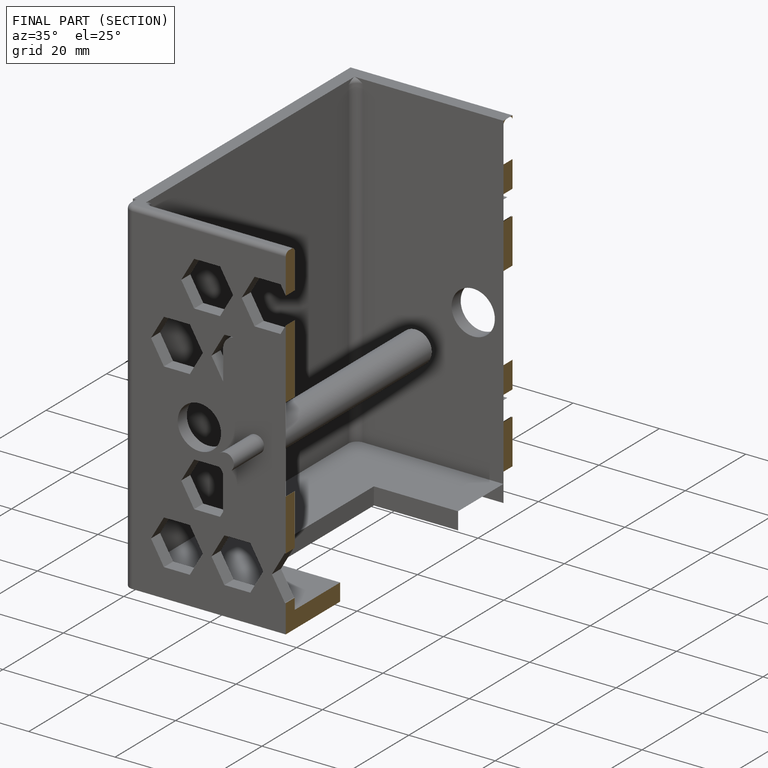
[diagram: finished part — half-section view (interior)]
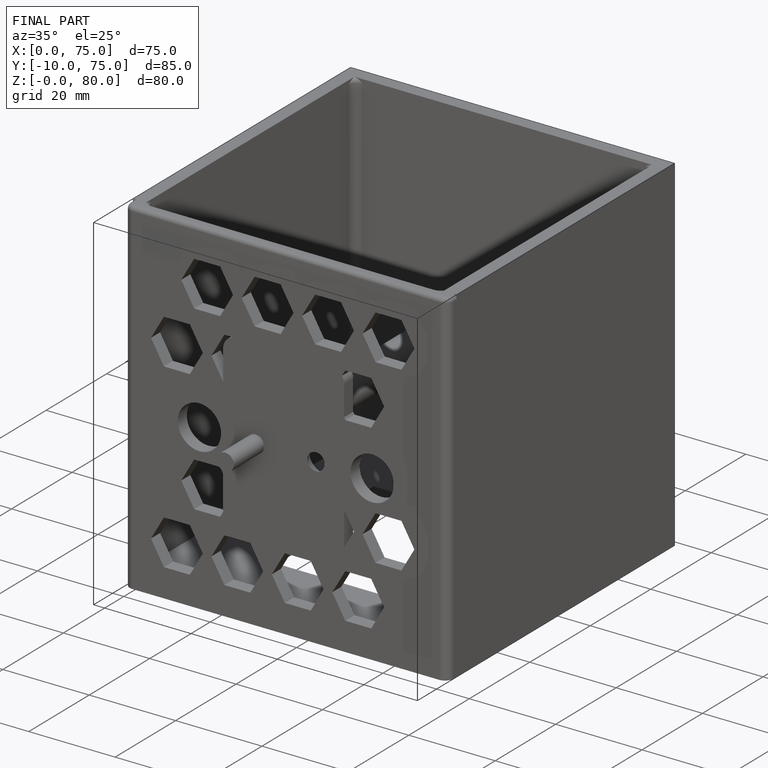
[diagram: finished part — iso view with bounding-box wireframe]
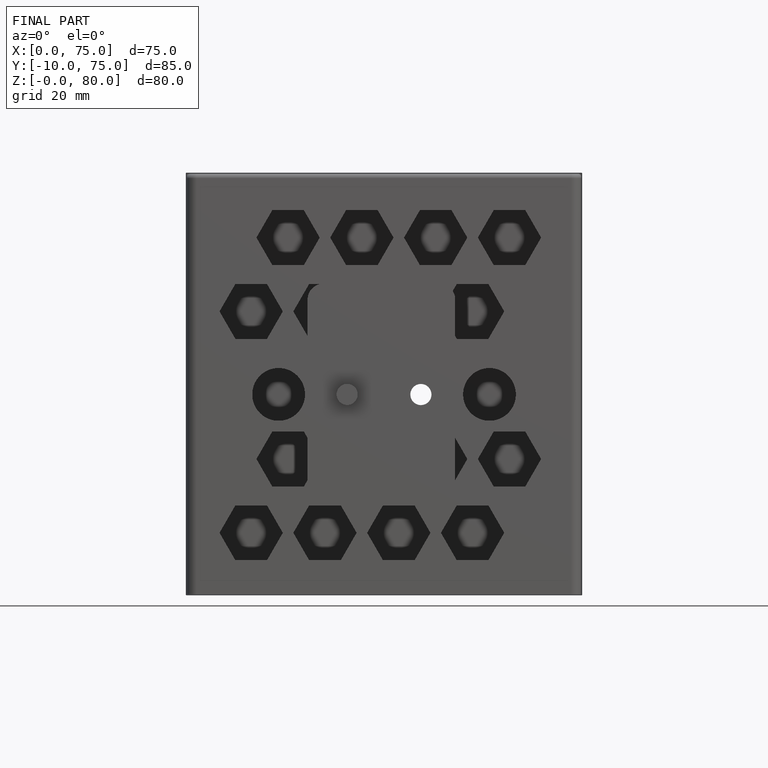
[diagram: finished part — front view with bounding-box wireframe]
